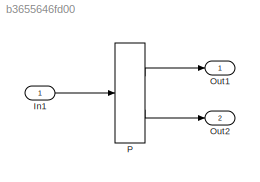
MODEL slx_b3655646fd00
KIND model
CONFIG AbsTol = auto
CONFIG EnableMultiTasking = off
CONFIG FixedStep = auto
CONFIG MaxStep = auto
CONFIG MinStep = auto
CONFIG RelTol = 1e-3
CONFIG SampleTimeConstraint = Unconstrained
CONFIG Solver = FixedStepDiscrete
CONFIG SolverName = FixedStepDiscrete
CONFIG StartTime = 0.0
CONFIG StopTime = 10.0
BLOCK [Inport] In1
  IconDisplay = Port number
  OutDataTypeStr = int8
  PortDimensions = 1
BLOCK [Outport] Out1
  IconDisplay = Port number
BLOCK [Outport] Out2
  IconDisplay = Port number
  Port = 2
BLOCK [PreLookup] P
  BreakpointDataTypeStr = int16
  BreakpointObject = myBpSet
  BreakpointsData = [10:10:110]
  BreakpointsSpecification = Breakpoint object
  FractionDataTypeStr = double
  IndexDataTypeStr = int8
  InitFcn = myBpSet = Simulink.Breakpoint;\nmyBpSet.Breakpoints.Value = [-2 -1 0 1 2];
  InputPortMap = u0
  Ports = [1, 2]
  RndMeth = Convergent
LINE In1:1 -> P:1
LINE P:1 -> Out1:1
LINE P:2 -> Out2:1
